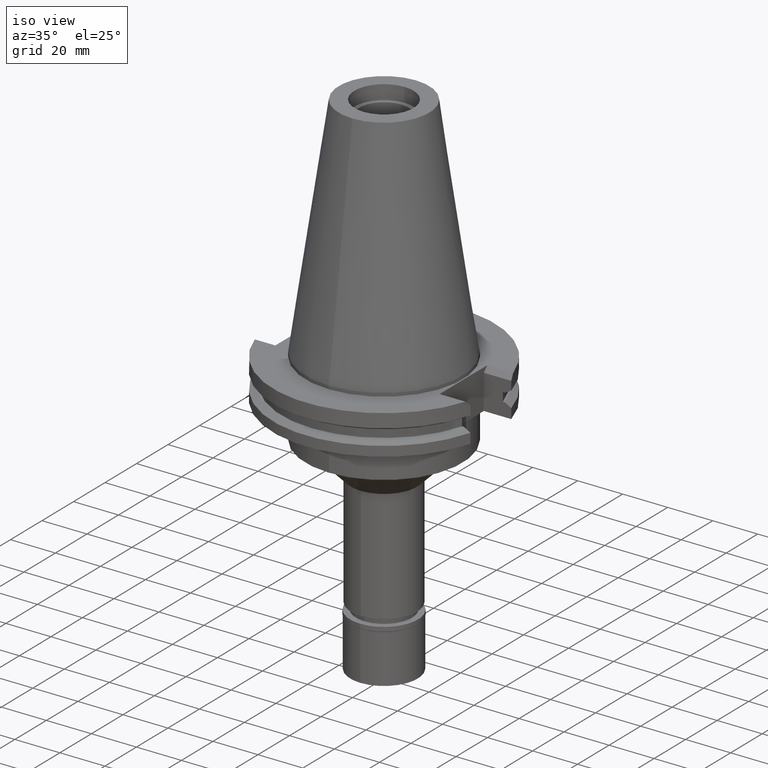
[diagram: clean part render]
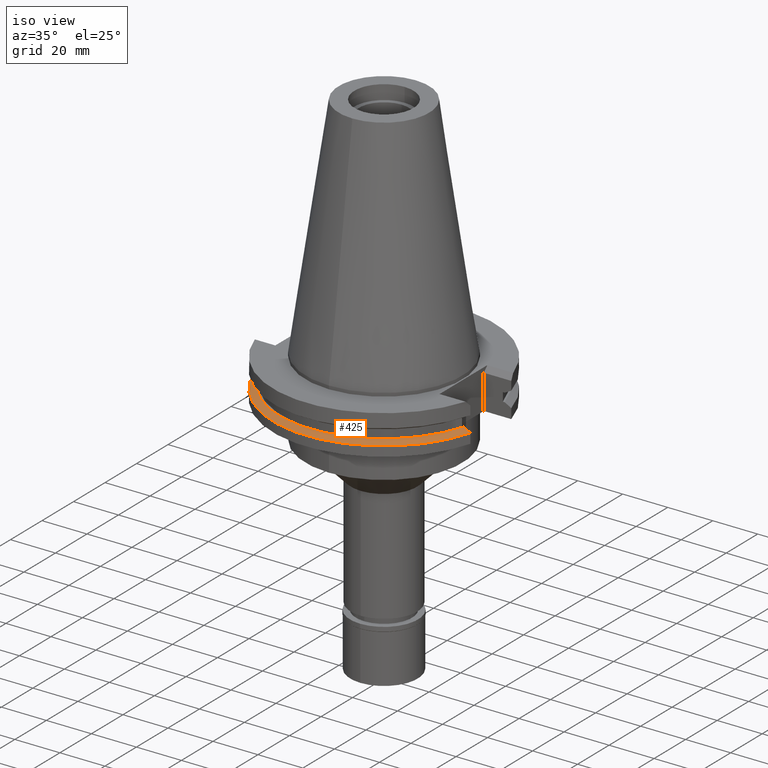
[diagram: same view with one face highlighted and labeled with its STEP entity id]
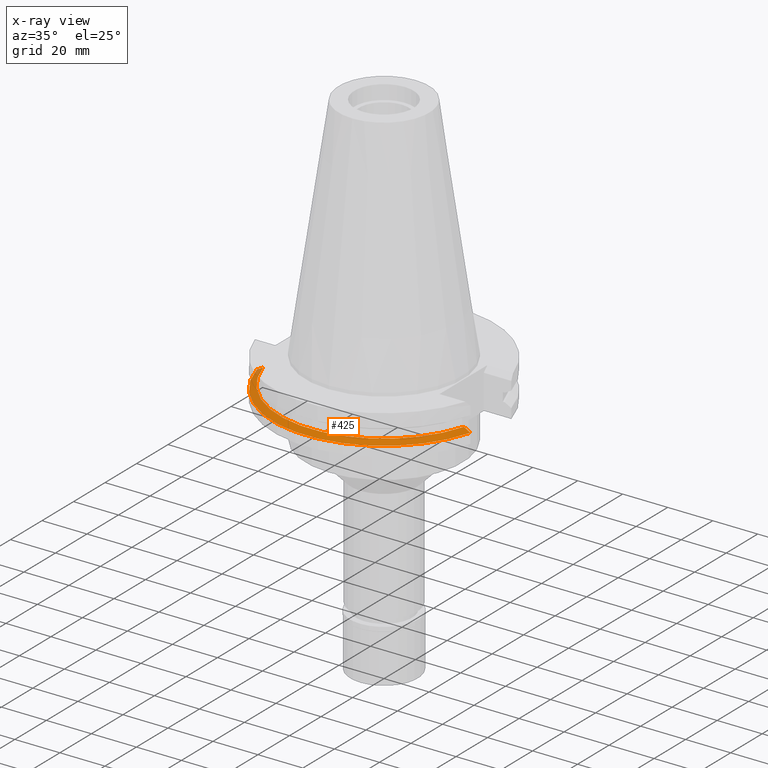
[diagram: x-ray of the same camera — body ghosted, the highlighted face saturated]
A machine part, iso view. The second image highlights one B-rep face of the part: STEP entity #425.
The next image is the same camera in x-ray: the body ghosted, the highlighted face saturated — about 1% of this face is hidden behind the body in this view.
In plain terms, the highlighted conical surface has half-angle 60 deg.
Its self-contained STEP definition (entity closure, byte-faithful):
#12 = DIRECTION ( 'NONE',  ( 0.0000000000000000000, 0.0000000000000000000, -1.000000000000000000 ) ) ;
#19 = EDGE_CURVE ( 'NONE', #159, #1898, #1159, .T. ) ;
#139 = CARTESIAN_POINT ( 'NONE',  ( -47.47671146204000081, -12.95500000000000007, -14.65366676908000088 ) ) ;
#159 = VERTEX_POINT ( 'NONE', #3287 ) ;
#169 = CARTESIAN_POINT ( 'NONE',  ( -47.47671146204000081, -12.95500000000000007, -14.65366676908000088 ) ) ;
#190 = FACE_OUTER_BOUND ( 'NONE', #1458, .T. ) ;
#425 = ADVANCED_FACE ( 'NONE', ( #190 ), #1144, .T. ) ;
#592 = CARTESIAN_POINT ( 'NONE',  ( 0.0000000000000000000, 1.055026073064999954E-14, -13.04749999999999943 ) ) ;
#632 = EDGE_CURVE ( 'NONE', #159, #688, #1253, .T. ) ;
#688 = VERTEX_POINT ( 'NONE', #2922 ) ;
#711 = CARTESIAN_POINT ( 'NONE',  ( 0.0000000000000000000, 1.055026073064999954E-14, -13.85058338454000015 ) ) ;
#918 = CARTESIAN_POINT ( 'NONE',  ( 47.47671146204000081, -12.95500000000000007, -14.65366676908000088 ) ) ;
#940 = DIRECTION ( 'NONE',  ( 0.0000000000000000000, -1.000000000000000000, 0.0000000000000000000 ) ) ;
#954 = B_SPLINE_CURVE_WITH_KNOTS ( 'NONE', 3,
 ( #169, #2972, #1667, #1680 ),
 .UNSPECIFIED., .F., .F.,
 ( 4, 4 ),
 ( 0.0000000000000000000, 1.000000000000000000 ),
 .UNSPECIFIED. ) ;
#1027 = CIRCLE ( 'NONE', #1992, 49.21250000000001279 ) ;
#1033 = AXIS2_PLACEMENT_3D ( 'NONE', #592, #2903, #1649 ) ;
#1144 = CONICAL_SURFACE ( 'NONE', #1583, 47.82151877527000039, 1.047197551196400456 ) ;
#1159 = B_SPLINE_CURVE_WITH_KNOTS ( 'NONE', 3,
 ( #2121, #2342, #1475, #2484 ),
 .UNSPECIFIED., .F., .F.,
 ( 4, 4 ),
 ( 0.0000000000000000000, 1.000000000000000000 ),
 .UNSPECIFIED. ) ;
#1238 = DIRECTION ( 'NONE',  ( 0.9647287063660957562, -0.2632461264922989486, 0.0000000000000000000 ) ) ;
#1253 = CIRCLE ( 'NONE', #1033, 46.43053755053000486 ) ;
#1279 = ORIENTED_EDGE ( 'NONE', *, *, #632, .T. ) ;
#1458 = EDGE_LOOP ( 'NONE', ( #2703, #2964, #3239, #1279 ) ) ;
#1460 = DIRECTION ( 'NONE',  ( 0.0000000000000000000, 0.0000000000000000000, -1.000000000000000000 ) ) ;
#1475 = CARTESIAN_POINT ( 'NONE',  ( 46.48531137486769182, -12.95500000000000007, -14.10147042505990633 ) ) ;
#1565 = CARTESIAN_POINT ( 'NONE',  ( 0.0000000000000000000, 1.055026073064999954E-14, -14.65366676908000088 ) ) ;
#1583 = AXIS2_PLACEMENT_3D ( 'NONE', #711, #1460, #940 ) ;
#1649 = DIRECTION ( 'NONE',  ( 0.9602855947900087452, -0.2790189535476025329, 0.0000000000000000000 ) ) ;
#1667 = CARTESIAN_POINT ( 'NONE',  ( -45.52193301680006243, -12.95500000000000007, -13.56608150567840099 ) ) ;
#1680 = CARTESIAN_POINT ( 'NONE',  ( -44.58657636813000380, -12.95500000000000007, -13.04749999999999943 ) ) ;
#1898 = VERTEX_POINT ( 'NONE', #918 ) ;
#1992 = AXIS2_PLACEMENT_3D ( 'NONE', #1565, #12, #1238 ) ;
#2121 = CARTESIAN_POINT ( 'NONE',  ( 44.58657636813000380, -12.95500000000000007, -13.04749999999999943 ) ) ;
#2342 = CARTESIAN_POINT ( 'NONE',  ( 45.52193301023102379, -12.95500000000000007, -13.56608150203324037 ) ) ;
#2484 = CARTESIAN_POINT ( 'NONE',  ( 47.47671146204000081, -12.95500000000000007, -14.65366676908000088 ) ) ;
#2597 = EDGE_CURVE ( 'NONE', #1898, #2921, #1027, .T. ) ;
#2703 = ORIENTED_EDGE ( 'NONE', *, *, #2888, .F. ) ;
#2888 = EDGE_CURVE ( 'NONE', #2921, #688, #954, .T. ) ;
#2903 = DIRECTION ( 'NONE',  ( 0.0000000000000000000, 0.0000000000000000000, -1.000000000000000000 ) ) ;
#2921 = VERTEX_POINT ( 'NONE', #139 ) ;
#2922 = CARTESIAN_POINT ( 'NONE',  ( -44.58657636813000380, -12.95500000000000007, -13.04749999999999943 ) ) ;
#2964 = ORIENTED_EDGE ( 'NONE', *, *, #2597, .F. ) ;
#2972 = CARTESIAN_POINT ( 'NONE',  ( -46.48531138143672337, -12.95500000000000007, -14.10147042870506695 ) ) ;
#3239 = ORIENTED_EDGE ( 'NONE', *, *, #19, .F. ) ;
#3287 = CARTESIAN_POINT ( 'NONE',  ( 44.58657636813000380, -12.95500000000000007, -13.04749999999999943 ) ) ;